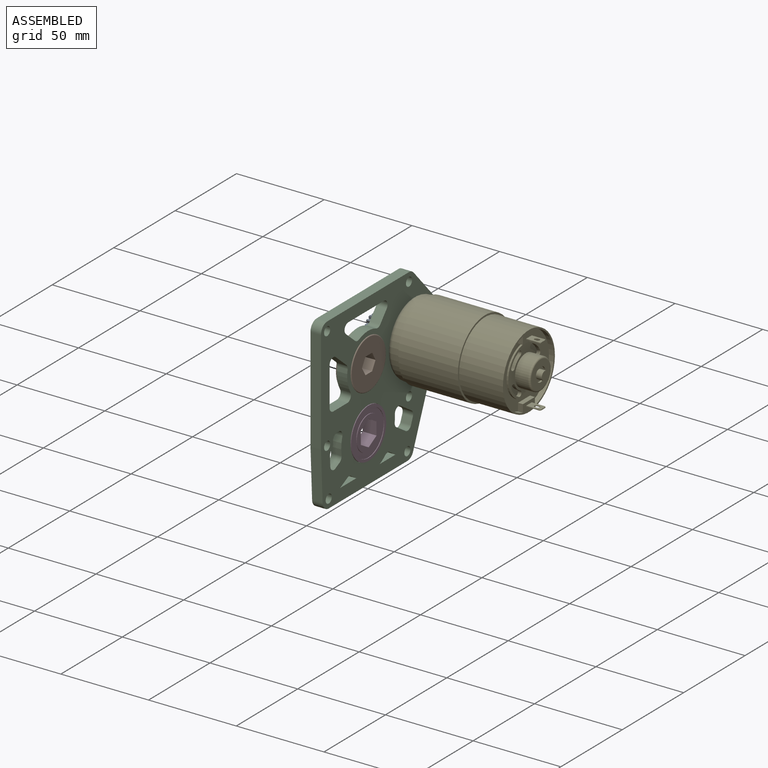
[diagram: assembled view]
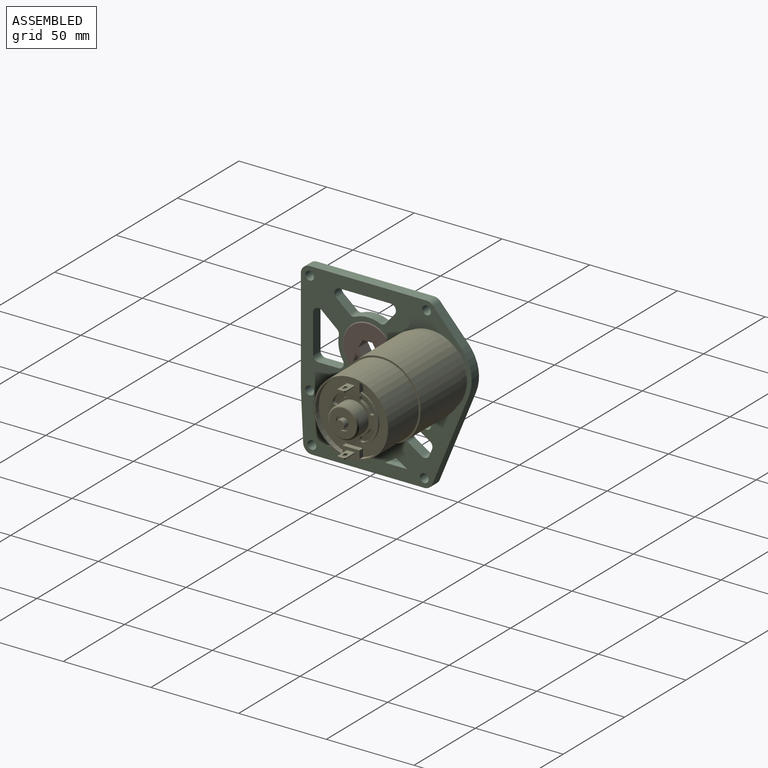
[diagram: assembled view, second angle]
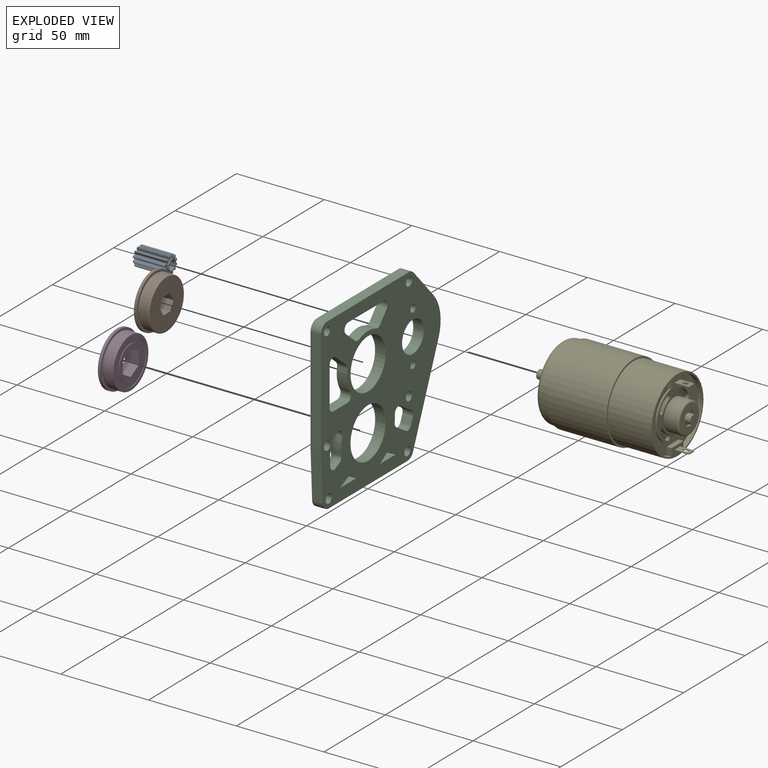
[diagram: exploded view]
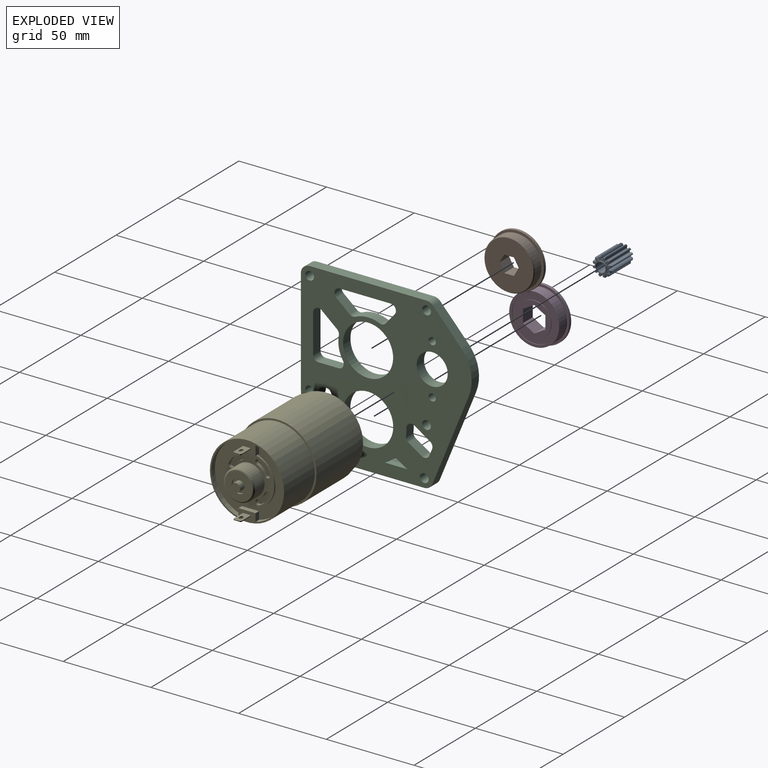
[diagram: exploded view, second angle]
ASSEMBLY  parts=5 mates=7
PART A: 55 faces, bbox 11x19.1x11 mm
  f0: cone r=2.48mm half-angle=45deg, axis (0,-1,0), area 5.9mm2, adj f2,f29
  f1: cone r=2.73mm half-angle=45deg, axis (0,1,0), area 5.9mm2, adj f2,f30
  f2: cylinder r=2.48mm len=18.54mm, axis (0,-1,0), area 288.9mm2, adj f0,f1
  f3: cylinder r=3.17mm len=6.35mm, axis (0,-1,0), area 15.8mm2, adj f28,f30
  f4: cylinder r=5.56mm len=17.24mm, axis (0,-1,0), area 8.5mm2, adj f17,f27,f31,f44
  f5: cylinder r=5.56mm len=17.24mm, axis (0,-1,0), area 8.5mm2, adj f26,f27,f32,f45
  f6: cylinder r=5.56mm len=17.24mm, axis (0,-1,0), area 8.5mm2, adj f23,f26,f33,f46
  f7: cylinder r=5.56mm len=17.24mm, axis (0,-1,0), area 8.5mm2, adj f24,f25,f34,f48
  f8: cylinder r=5.56mm len=17.24mm, axis (0,-1,0), area 8.5mm2, adj f21,f25,f35,f49
  f9: cylinder r=5.56mm len=17.24mm, axis (0,-1,0), area 8.5mm2, adj f23,f24,f36,f47
  f10: cylinder r=5.56mm len=17.24mm, axis (0,-1,0), area 8.5mm2, adj f21,f22,f37,f50
  f11: cylinder r=5.56mm len=17.24mm, axis (0,-1,0), area 8.5mm2, adj f20,f22,f38,f51
  f12: cylinder r=5.56mm len=17.24mm, axis (0,-1,0), area 8.5mm2, adj f18,f20,f39,f52
  f13: cylinder r=5.56mm len=17.24mm, axis (0,-1,0), area 8.5mm2, adj f18,f19,f40,f53
  f14: cylinder r=5.56mm len=17.24mm, axis (0,-1,0), area 8.5mm2, adj f16,f19,f41,f54
  f15: cylinder r=5.56mm len=17.24mm, axis (0,-1,0), area 8.5mm2, adj f16,f17,f42,f43
  f16: extruded ~18.26x2.4mm, area 79.8mm2, adj f14,f15,f28,f29,f41,f42,f43,f54
  f17: extruded ~18.26x2.13mm, area 79.8mm2, adj f4,f15,f28,f29,f31,f42,f43,f44
  f18: extruded ~18.26x2.13mm, area 79.8mm2, adj f12,f13,f28,f29,f39,f40,f52,f53
  f19: extruded ~18.26x2.13mm, area 79.8mm2, adj f13,f14,f28,f29,f40,f41,f53,f54
  f20: extruded ~18.26x2.4mm, area 79.8mm2, adj f11,f12,f28,f29,f38,f39,f51,f52
  f21: extruded ~18.26x2.13mm, area 79.8mm2, adj f8,f10,f28,f29,f35,f37,f49,f50
  f22: extruded ~18.26x2.13mm, area 79.8mm2, adj f10,f11,f28,f29,f37,f38,f50,f51
  f23: extruded ~18.26x2.13mm, area 79.8mm2, adj f6,f9,f28,f29,f33,f36,f46,f47
  f24: extruded ~18.26x2.13mm, area 79.8mm2, adj f7,f9,f28,f29,f34,f36,f47,f48
  f25: extruded ~18.26x2.4mm, area 79.8mm2, adj f7,f8,f28,f29,f34,f35,f48,f49
  f26: extruded ~18.26x2.4mm, area 79.8mm2, adj f5,f6,f28,f29,f32,f33,f45,f46
  f27: extruded ~18.26x2.13mm, area 79.8mm2, adj f4,f5,f28,f29,f31,f32,f44,f45
  f28: plane 9.98x9.98mm, normal (0,1,0), area 32.2mm2, adj f3,f16,f17,f18,f19,f20,f21,f22
  f29: plane 9.98x9.98mm, normal (0,-1,0), area 40.4mm2, adj f0,f16,f17,f18,f19,f20,f21,f22
  f30: plane 6.35x6.35mm, normal (0,1,0), area 8.2mm2, adj f1,f3
  f31: cone r=5.05mm half-angle=45deg, axis (0,1,0), area 0.6mm2, adj f4,f17,f27,f29
  f32: cone r=5.05mm half-angle=45deg, axis (0,1,0), area 0.6mm2, adj f5,f26,f27,f29
  f33: cone r=5.05mm half-angle=45deg, axis (0,1,0), area 0.6mm2, adj f6,f23,f26,f29
  f34: cone r=5.05mm half-angle=45deg, axis (0,1,0), area 0.6mm2, adj f7,f24,f25,f29
  f35: cone r=5.05mm half-angle=45deg, axis (0,1,0), area 0.6mm2, adj f8,f21,f25,f29
  f36: cone r=5.05mm half-angle=45deg, axis (0,1,0), area 0.6mm2, adj f9,f23,f24,f29
  f37: cone r=5.05mm half-angle=45deg, axis (0,1,0), area 0.6mm2, adj f10,f21,f22,f29
  f38: cone r=5.05mm half-angle=45deg, axis (0,1,0), area 0.6mm2, adj f11,f20,f22,f29
  f39: cone r=5.05mm half-angle=45deg, axis (0,1,0), area 0.6mm2, adj f12,f18,f20,f29
  f40: cone r=5.05mm half-angle=45deg, axis (0,1,0), area 0.6mm2, adj f13,f18,f19,f29
  f41: cone r=5.05mm half-angle=45deg, axis (0,1,0), area 0.6mm2, adj f14,f16,f19,f29
  f42: cone r=5.05mm half-angle=45deg, axis (0,1,0), area 0.6mm2, adj f15,f16,f17,f29
  f43: cone r=5.05mm half-angle=45deg, axis (0,-1,0), area 0.6mm2, adj f15,f16,f17,f28
  f44: cone r=5.05mm half-angle=45deg, axis (0,-1,0), area 0.6mm2, adj f4,f17,f27,f28
  f45: cone r=5.05mm half-angle=45deg, axis (0,-1,0), area 0.6mm2, adj f5,f26,f27,f28
  f46: cone r=5.05mm half-angle=45deg, axis (0,-1,0), area 0.6mm2, adj f6,f23,f26,f28
  f47: cone r=5.05mm half-angle=45deg, axis (0,-1,0), area 0.6mm2, adj f9,f23,f24,f28
  f48: cone r=5.05mm half-angle=45deg, axis (0,-1,0), area 0.6mm2, adj f7,f24,f25,f28
  f49: cone r=5.05mm half-angle=45deg, axis (0,-1,0), area 0.6mm2, adj f8,f21,f25,f28
  f50: cone r=5.05mm half-angle=45deg, axis (0,-1,0), area 0.6mm2, adj f10,f21,f22,f28
  f51: cone r=5.05mm half-angle=45deg, axis (0,-1,0), area 0.6mm2, adj f11,f20,f22,f28
  f52: cone r=5.05mm half-angle=45deg, axis (0,-1,0), area 0.6mm2, adj f12,f18,f20,f28
  f53: cone r=5.05mm half-angle=45deg, axis (0,-1,0), area 0.6mm2, adj f13,f18,f19,f28
  f54: cone r=5.05mm half-angle=45deg, axis (0,-1,0), area 0.6mm2, adj f14,f16,f19,f28
PART B: 17 faces, bbox 31.1x7.9x31.1 mm
  f0: torus R=13.78mm, axis (0,1,0), area 35.4mm2, adj f4,f13,f14
  f1: cone r=15.56mm half-angle=45deg, axis (0,1,0), area 17.5mm2, adj f2,f6
  f2: cylinder r=15.56mm len=31.12mm, axis (0,-1,0), area 124.1mm2, adj f1,f3
  f3: cone r=15.56mm half-angle=45deg, axis (0,-1,0), area 17.5mm2, adj f2,f15
  f4: cylinder r=14.29mm len=28.58mm, axis (0,-1,0), area 483.6mm2, adj f0,f14,f16
  f5: cylinder r=13.97mm len=27.94mm, axis (0,1,0), area 44.6mm2, adj f15,f16
  f6: plane 30.86x30.86mm, normal (0,-1,0), area 669.4mm2, adj f1,f7,f8,f9,f10,f11,f12
  f7: plane 7.93x4.76mm, normal (0.87,0,0.5), area 43.6mm2, adj f6,f8,f12,f13
  f8: plane 7.93x4.76mm, normal (0.87,0,-0.5), area 43.6mm2, adj f6,f7,f9,f13
  f9: plane 7.93x5.5mm, normal (0,0,-1), area 43.6mm2, adj f6,f8,f10,f13
  f10: plane 7.93x4.76mm, normal (-0.87,0,-0.5), area 43.6mm2, adj f6,f9,f11,f13
  f11: plane 7.93x4.76mm, normal (-0.87,0,0.5), area 43.6mm2, adj f6,f10,f12,f13
  f12: plane 7.93x5.5mm, normal (0,0,1), area 43.6mm2, adj f6,f7,f11,f13
  f13: plane 27.56x27.56mm, normal (0,1,0), area 517.9mm2, adj f0,f7,f8,f9,f10,f11,f12,f14
  f14: torus R=13.78mm, axis (0,1,0), area 35.4mm2, adj f0,f4,f13
  f15: plane 30.86x30.86mm, normal (0,1,0), area 134.9mm2, adj f3,f5
  f16: plane 28.58x28.58mm, normal (0,-1,0), area 28.2mm2, adj f4,f5
PART C: 66 faces, bbox 97.4x6x96.8 mm
  f0: cylinder r=22.5mm len=23.66mm, axis (0,1,0), area 152.1mm2, adj f1,f30,f44,f45
  f1: plane 17.76x16.16mm, normal (0.74,0,0.67), area 144.1mm2, adj f0,f2,f44,f45
  f2: cylinder r=5mm len=6mm, axis (0,1,0), area 25mm2, adj f1,f3,f44,f45
  f3: plane 66.67x6mm, normal (0,0,1), area 400mm2, adj f2,f4,f44,f45
  f4: cylinder r=5mm len=6mm, axis (0,1,0), area 47.1mm2, adj f3,f5,f44,f45
  f5: plane 59.07x6mm, normal (-1,0,0), area 354.4mm2, adj f4,f6,f44,f45
  f6: plane 28x6mm, normal (-1,0,-0.05), area 168.2mm2, adj f5,f7,f44,f45
  f7: cylinder r=5mm len=6mm, axis (0,1,0), area 45.7mm2, adj f6,f8,f44,f45
  f8: plane 64.06x6mm, normal (0,0,-1), area 384.3mm2, adj f7,f9,f44,f45
  f9: cylinder r=5mm len=6mm, axis (0,1,0), area 35.5mm2, adj f8,f30,f44,f45
  f10: plane 29.05x6mm, normal (0,0,-1), area 174.3mm2, adj f44,f45,f56,f57
  f11: plane 6.07x6mm, normal (-0.76,0,0.65), area 48mm2, adj f44,f45,f57,f62
  f12: cylinder r=17mm len=13.8mm, axis (0,1,0), area 85.3mm2, adj f44,f45,f62,f63
  f13: plane 7.52x6mm, normal (0.55,0,0.84), area 53.8mm2, adj f44,f45,f53,f59
  f14: cylinder r=21.85mm len=6mm, axis (0,1,0), area 24.6mm2, adj f44,f45,f53,f54
  f15: plane 8.88x6mm, normal (-0.55,0,-0.84), area 63.6mm2, adj f44,f45,f54,f58
  f16: plane 12.83x6mm, normal (0,0,1), area 77mm2, adj f17,f39,f44,f45
  f17: cylinder r=21.85mm len=6mm, axis (0,1,0), area 32.2mm2, adj f16,f44,f45,f52
  f18: plane 6x5.9mm, normal (0.45,0,-0.89), area 39.6mm2, adj f40,f44,f45,f51
  f19: cylinder r=21.85mm len=6mm, axis (0,1,0), area 29.5mm2, adj f40,f44,f45,f51
  f20: cylinder r=17mm len=12.4mm, axis (0,1,0), area 77.5mm2, adj f44,f45,f48,f64
  f21: plane 11.46x6mm, normal (0,0,1), area 68.7mm2, adj f44,f45,f48,f49
  f22: plane 21.98x6mm, normal (1,0,0), area 131.9mm2, adj f44,f45,f49,f55
  f23: plane 6x1.5mm, normal (0,0,-1), area 9mm2, adj f44,f45,f46,f47
  f24: cylinder r=21.85mm len=9.39mm, axis (0,1,0), area 56.9mm2, adj f44,f45,f47,f50
  f25: plane 6x3.22mm, normal (-0.45,0,0.89), area 21.6mm2, adj f44,f45,f50,f60
  f26: plane 6x5.49mm, normal (1,0,0.05), area 33mm2, adj f44,f45,f60,f61
  f27: cylinder r=2.05mm len=6mm, axis (0,1,0), area 77.3mm2, adj f44,f45
  f28: cylinder r=8.85mm len=17.7mm, axis (0,1,0), area 333.6mm2, adj f44,f45
  f29: cylinder r=2.5mm len=6mm, axis (0,1,0), area 94.2mm2, adj f44,f45
  f30: plane 50.68x20.72mm, normal (0.93,0,-0.38), area 328.5mm2, adj f0,f9,f44,f45
  f31: cylinder r=2.5mm len=6mm, axis (0,1,0), area 94.2mm2, adj f44,f45
  f32: cylinder r=2.5mm len=6mm, axis (0,1,0), area 94.2mm2, adj f44,f45
  f33: cylinder r=2.5mm len=6mm, axis (0,1,0), area 94.2mm2, adj f44,f45
  f34: plane 7.61x6.46mm, normal (0.65,0,0.76), area 59.9mm2, adj f44,f45,f56,f63
  f35: cylinder r=2.5mm len=6mm, axis (0,1,0), area 94.2mm2, adj f44,f45
  f36: cylinder r=2.5mm len=6mm, axis (0,1,0), area 94.2mm2, adj f44,f45
  f37: cylinder r=14.35mm len=28.7mm, axis (0,1,0), area 541mm2, adj f44,f45
  f38: plane 6x3.77mm, normal (-0.93,0,0.38), area 24.4mm2, adj f44,f45,f58,f59
  f39: plane 6x4.78mm, normal (-0.55,0,-0.84), area 34.2mm2, adj f16,f44,f45,f52
  f40: plane 13.27x6mm, normal (0,0,1), area 79.6mm2, adj f18,f19,f44,f45
  f41: plane 8.71x7.4mm, normal (-0.65,0,-0.76), area 68.6mm2, adj f44,f45,f55,f64
  f42: cylinder r=5mm len=6mm, axis (0,1,0), area 28.5mm2, adj f44,f45,f46,f61
  f43: cylinder r=2.05mm len=6mm, axis (0,1,0), area 77.3mm2, adj f44,f45
  f44: plane 97.38x96.84mm, normal (0,-1,0), area 5656.9mm2, adj f0,f1,f2,f3,f4,f5,f6,f7
  f45: plane 97.38x96.84mm, normal (0,1,0), area 5656.9mm2, adj f0,f1,f2,f3,f4,f5,f6,f7
  f46: cylinder r=3mm len=6mm, axis (0,1,0), area 30.1mm2, adj f23,f42,f44,f45
  f47: cylinder r=3mm len=6mm, axis (0,1,0), area 33.3mm2, adj f23,f24,f44,f45
  f48: cylinder r=3mm len=6mm, axis (0,1,0), area 38.5mm2, adj f20,f21,f44,f45
  f49: cylinder r=3mm len=6mm, axis (0,-1,0), area 28.3mm2, adj f21,f22,f44,f45
  f50: cylinder r=3mm len=6mm, axis (0,1,0), area 22.7mm2, adj f24,f25,f44,f45
  f51: cylinder r=3mm len=6mm, axis (0,1,0), area 20.5mm2, adj f18,f19,f44,f45
  f52: cylinder r=3mm len=6mm, axis (0,1,0), area 22.9mm2, adj f17,f39,f44,f45
  f53: cylinder r=3mm len=6mm, axis (0,1,0), area 20.3mm2, adj f13,f14,f44,f45
  f54: cylinder r=3mm len=6mm, axis (0,1,0), area 39.7mm2, adj f14,f15,f44,f45
  f55: cylinder r=3mm len=6mm, axis (0,1,0), area 40.9mm2, adj f22,f41,f44,f45
  f56: cylinder r=3mm len=6mm, axis (0,-1,0), area 43.9mm2, adj f10,f34,f44,f45
  f57: cylinder r=3mm len=6mm, axis (0,1,0), area 41mm2, adj f10,f11,f44,f45
  f58: cylinder r=3mm len=6mm, axis (0,1,0), area 24.9mm2, adj f15,f38,f44,f45
  f59: cylinder r=3mm len=6mm, axis (0,-1,0), area 31.7mm2, adj f13,f38,f44,f45
  f60: cylinder r=3mm len=6mm, axis (0,1,0), area 35.8mm2, adj f25,f26,f44,f45
  f61: cylinder r=3mm len=6mm, axis (0,1,0), area 16.1mm2, adj f26,f42,f44,f45
  f62: cylinder r=3mm len=6mm, axis (0,1,0), area 22.6mm2, adj f11,f12,f44,f45
  f63: cylinder r=3mm len=6mm, axis (0,1,0), area 20.6mm2, adj f12,f34,f44,f45
  f64: cylinder r=3mm len=6mm, axis (0,1,0), area 19.1mm2, adj f20,f41,f44,f45
  f65: cylinder r=14.29mm len=28.58mm, axis (0,-1,0), area 538.6mm2, adj f44,f45
PART D: 21 faces, bbox 31.1x31.1x7.9 mm
  f0: torus R=14.27mm, axis (0,0,1), area 46.4mm2, adj f4,f10
  f1: cylinder r=9.65mm len=19.3mm, axis (0,0,1), area 23.1mm2, adj f12,f13
  f2: cylinder r=12.7mm len=25.4mm, axis (0,0,1), area 30.4mm2, adj f11,f12
  f3: cylinder r=14.27mm len=28.55mm, axis (0,0,1), area 502.3mm2, adj f4,f11
  f4: cone r=14.06mm half-angle=30deg, axis (0,0,-1), area 38.5mm2, adj f0,f3
  f5: cylinder r=15.56mm len=31.12mm, axis (0,0,1), area 155.2mm2, adj f9,f10
  f6: cylinder r=12.7mm len=25.4mm, axis (0,0,1), area 30.4mm2, adj f8,f9
  f7: cylinder r=9.65mm len=19.3mm, axis (0,0,1), area 23.1mm2, adj f8,f14
  f8: plane 25.4x25.4mm, normal (0,0,1), area 214mm2, adj f6,f7
  f9: plane 31.12x31.12mm, normal (0,0,1), area 253.7mm2, adj f5,f6
  f10: plane 31.12x31.12mm, normal (0,0,-1), area 120.2mm2, adj f0,f5
  f11: plane 28.55x28.55mm, normal (0,0,-1), area 133.5mm2, adj f2,f3
  f12: plane 25.4x25.4mm, normal (0,0,-1), area 214mm2, adj f1,f2
  f13: plane 19.3x19.3mm, normal (0,0,-1), area 152.6mm2, adj f1,f15,f16,f17,f18,f19,f20
  f14: plane 19.3x19.3mm, normal (0,0,1), area 152.6mm2, adj f7,f15,f16,f17,f18,f19,f20
  f15: plane 7.94x6.36mm, normal (-0.87,-0.5,0), area 58.3mm2, adj f13,f14,f16,f20
  f16: plane 7.94x6.36mm, normal (-0.87,0.5,0), area 58.3mm2, adj f13,f14,f15,f17
  f17: plane 7.94x7.34mm, normal (0,1,0), area 58.3mm2, adj f13,f14,f16,f18
  f18: plane 7.94x6.36mm, normal (0.87,0.5,0), area 58.3mm2, adj f13,f14,f17,f19
  f19: plane 7.94x6.36mm, normal (0.87,-0.5,0), area 58.3mm2, adj f13,f14,f18,f20
  f20: plane 7.94x7.34mm, normal (0,-1,0), area 58.3mm2, adj f13,f14,f15,f19
PART E: 106 faces, bbox 88x45.8x45.8 mm
  f0: cylinder r=1.25mm len=2.5mm, axis (1,0,0), area 0.8mm2, adj f84,f105
  f1: cylinder r=8.75mm len=17.5mm, axis (-1,0,0), area 412.3mm2, adj f6,f104
  f2: cylinder r=1.5mm len=2.85mm, axis (1,0,0), area 9.4mm2, adj f91,f101,f103,f104
  f3: cylinder r=1.5mm len=2.85mm, axis (1,0,0), area 9.4mm2, adj f90,f98,f100,f104
  f4: cylinder r=1.5mm len=2.85mm, axis (1,0,0), area 9.4mm2, adj f89,f95,f96,f104
  f5: cylinder r=1.5mm len=2.85mm, axis (1,0,0), area 9.4mm2, adj f88,f92,f93,f104
  f6: torus R=7.75mm, axis (-1,0,0), area 82.8mm2, adj f1,f87
  f7: cylinder r=4mm len=8mm, axis (1,0,0), area 25.1mm2, adj f86,f87
  f8: cylinder r=2.5mm len=5mm, axis (-1,0,0), area 53.4mm2, adj f85,f86
  f9: cylinder r=14.25mm len=28.5mm, axis (1,0,0), area 89.5mm2, adj f84,f104
  f10: cylinder r=2.5mm len=7.55mm, axis (-1,0,0), area 118.6mm2, adj f11,f83
  f11: torus R=2.25mm, axis (1,0,0), area 5.9mm2, adj f10,f82
  f12: cylinder r=3.75mm len=7.5mm, axis (-1,0,0), area 23.6mm2, adj f81,f83
  f13: cylinder r=6.62mm len=13.25mm, axis (-1,0,0), area 41.6mm2, adj f28,f81
  f14: torus R=8.15mm, axis (1,0,0), area 63.9mm2, adj f22,f28
  f15: cone r=1.65mm half-angle=59deg, axis (-1,0,0), area 10mm2, adj f16
  f16: cylinder r=1.65mm len=11.5mm, axis (-1,0,0), area 119.2mm2, adj f15,f25
  f17: cone r=1.65mm half-angle=59deg, axis (-1,0,0), area 10mm2, adj f18
  f18: cylinder r=1.65mm len=11.5mm, axis (-1,0,0), area 119.2mm2, adj f17,f25
  f19: cylinder r=21.15mm len=42.3mm, axis (-1,0,0), area 3322.2mm2, adj f26,f30
  f20: cylinder r=22.15mm len=44.3mm, axis (1,0,0), area 4731.9mm2, adj f29,f30
  f21: torus R=18.65mm, axis (1,0,0), area 499.4mm2, adj f23,f25
  f22: cylinder r=8.9mm len=17.8mm, axis (-1,0,0), area 237.7mm2, adj f14,f25
  f23: cylinder r=21.15mm len=42.3mm, axis (-1,0,0), area 611.3mm2, adj f21,f29
  f24: cylinder r=20.3mm len=39.41mm, axis (1,0,0), area 151mm2, adj f26,f31,f37,f84
  f25: plane 37.3x37.3mm, normal (-1,0,0), area 647.6mm2, adj f16,f18,f21,f22,f61,f62,f63,f64
  f26: plane 42.3x42.3mm, normal (1,0,0), area 203.5mm2, adj f19,f24,f27,f31,f32,f33,f34,f35
  f27: cylinder r=20.3mm len=39.41mm, axis (1,0,0), area 151mm2, adj f26,f32,f36,f84
  f28: plane 16.3x16.3mm, normal (-1,0,0), area 70.8mm2, adj f13,f14
  f29: plane 44.3x44.3mm, normal (-1,0,0), area 136mm2, adj f20,f23
  f30: plane 44.3x44.3mm, normal (1,0,0), area 136mm2, adj f19,f20
  f31: plane 5.46x2.8mm, normal (0,1,0), area 15.3mm2, adj f24,f26,f33,f84
  f32: plane 4.46x2.8mm, normal (0,-1,0), area 12.5mm2, adj f26,f27,f35,f84
  f33: plane 2.81x2.8mm, normal (0,0,-1), area 7.9mm2, adj f26,f31,f34,f84
  f34: plane 2.8x1mm, normal (0,-1,0), area 2.8mm2, adj f26,f33,f35,f84
  f35: plane 6.94x2.8mm, normal (0,0,-1), area 19.4mm2, adj f26,f32,f34,f84
  f36: plane 4.46x2.8mm, normal (0,-1,0), area 12.5mm2, adj f26,f27,f38,f84
  f37: plane 4.46x2.8mm, normal (0,1,0), area 12.5mm2, adj f24,f26,f38,f84
  f38: plane 9.75x2.8mm, normal (0,0,1), area 27.3mm2, adj f26,f36,f37,f84
  f39: plane 7.65x0.5mm, normal (0,-1,0), area 3.8mm2, adj f26,f40,f42,f49
  f40: plane 8.15x4.6mm, normal (0,0,-1), area 32.1mm2, adj f26,f39,f41,f43,f49,f50,f53,f54
  f41: plane 7.65x0.5mm, normal (0,1,0), area 3.8mm2, adj f26,f40,f42,f50
  f42: plane 8.15x4.6mm, normal (0,0,1), area 32.1mm2, adj f26,f39,f41,f43,f49,f50,f53,f54
  f43: plane 3.6x0.5mm, normal (1,0,0), area 1.8mm2, adj f40,f42,f49,f50
  f44: plane 8.15x4.6mm, normal (0,0,-1), area 32.1mm2, adj f26,f45,f47,f48,f51,f52,f57,f58
  f45: plane 7.65x0.5mm, normal (0,1,0), area 3.8mm2, adj f26,f44,f46,f52
  f46: plane 8.15x4.6mm, normal (0,0,1), area 32.1mm2, adj f26,f45,f47,f48,f51,f52,f57,f58
  f47: plane 7.65x0.5mm, normal (0,-1,0), area 3.8mm2, adj f26,f44,f46,f51
  f48: plane 3.6x0.5mm, normal (1,0,0), area 1.8mm2, adj f44,f46,f51,f52
  f49: plane 0.5x0.5mm, normal (0.71,-0.71,0), area 0.4mm2, adj f39,f40,f42,f43
  f50: plane 0.5x0.5mm, normal (0.71,0.71,0), area 0.4mm2, adj f40,f41,f42,f43
  f51: plane 0.5x0.5mm, normal (0.71,-0.71,0), area 0.4mm2, adj f44,f46,f47,f48
  f52: plane 0.5x0.5mm, normal (0.71,0.71,0), area 0.4mm2, adj f44,f45,f46,f48
  f53: cylinder r=1mm len=2mm, axis (0,0,1), area 1.6mm2, adj f40,f42,f54,f56
  f54: plane 1x0.5mm, normal (0,1,0), area 0.5mm2, adj f40,f42,f53,f55
  f55: cylinder r=1mm len=2mm, axis (0,0,1), area 1.6mm2, adj f40,f42,f54,f56
  f56: plane 1x0.5mm, normal (0,-1,0), area 0.5mm2, adj f40,f42,f53,f55
  f57: plane 1x0.5mm, normal (0,1,0), area 0.5mm2, adj f44,f46,f58,f60
  f58: cylinder r=1mm len=2mm, axis (0,0,-1), area 1.6mm2, adj f44,f46,f57,f59
  f59: plane 1x0.5mm, normal (0,-1,0), area 0.5mm2, adj f44,f46,f58,f60
  f60: cylinder r=1mm len=2mm, axis (0,0,-1), area 1.6mm2, adj f44,f46,f57,f59
  f61: plane 10x4.26mm, normal (0,0.91,-0.42), area 47mm2, adj f25,f62,f64,f65
  f62: cylinder r=11.3mm len=10mm, axis (-1,0,0), area 78.9mm2, adj f25,f61,f63,f65
  f63: plane 10x4.26mm, normal (0,-0.42,0.91), area 47mm2, adj f25,f62,f64,f65
  f64: cylinder r=16mm len=10mm, axis (-1,0,0), area 111.7mm2, adj f25,f61,f63,f65
  f65: plane 9.73x9.73mm, normal (-1,0,0), area 44.8mm2, adj f61,f62,f63,f64
  f66: plane 10x4.26mm, normal (0,-0.42,-0.91), area 47mm2, adj f25,f67,f69,f70
  f67: cylinder r=11.3mm len=10mm, axis (-1,0,0), area 78.9mm2, adj f25,f66,f68,f70
  f68: plane 10x4.26mm, normal (0,0.91,0.42), area 47mm2, adj f25,f67,f69,f70
  f69: cylinder r=16mm len=10mm, axis (-1,0,0), area 111.7mm2, adj f25,f66,f68,f70
  f70: plane 9.73x9.73mm, normal (-1,0,0), area 44.8mm2, adj f66,f67,f68,f69
  f71: plane 10x4.26mm, normal (0,-0.91,0.42), area 47mm2, adj f25,f72,f74,f75
  f72: cylinder r=11.3mm len=10mm, axis (-1,0,0), area 78.9mm2, adj f25,f71,f73,f75
  f73: plane 10x4.26mm, normal (0,0.42,-0.91), area 47mm2, adj f25,f72,f74,f75
  f74: cylinder r=16mm len=10mm, axis (-1,0,0), area 111.7mm2, adj f25,f71,f73,f75
  f75: plane 9.73x9.73mm, normal (-1,0,0), area 44.8mm2, adj f71,f72,f73,f74
  f76: plane 10x4.26mm, normal (0,0.42,0.91), area 47mm2, adj f25,f77,f79,f80
  f77: cylinder r=11.3mm len=10mm, axis (-1,0,0), area 78.9mm2, adj f25,f76,f78,f80
  f78: plane 10x4.26mm, normal (0,-0.91,-0.42), area 47mm2, adj f25,f77,f79,f80
  f79: cylinder r=16mm len=10mm, axis (-1,0,0), area 111.7mm2, adj f25,f76,f78,f80
  f80: plane 9.73x9.73mm, normal (-1,0,0), area 44.8mm2, adj f76,f77,f78,f79
  f81: plane 13.25x13.25mm, normal (-1,0,0), area 93.7mm2, adj f12,f13
  f82: plane 4.5x4.5mm, normal (-1,0,0), area 15.9mm2, adj f11
  f83: plane 7.5x7.5mm, normal (-1,0,0), area 24.5mm2, adj f10,f12
  f84: plane 40.6x39.41mm, normal (1,0,0), area 554.3mm2, adj f0,f9,f24,f27,f31,f32,f33,f34
  f85: plane 5x5mm, normal (1,0,0), area 19.6mm2, adj f8
  f86: plane 8x8mm, normal (1,0,0), area 30.6mm2, adj f7,f8
  f87: plane 15.5x15.5mm, normal (1,0,0), area 138.4mm2, adj f6,f7
  f88: plane 8.36x8.36mm, normal (1,0,0), area 30.2mm2, adj f5,f92,f93,f94
  f89: plane 8.36x8.36mm, normal (1,0,0), area 30.2mm2, adj f4,f95,f96,f97
  f90: plane 8.36x8.36mm, normal (1,0,0), area 30.2mm2, adj f3,f98,f99,f100
  f91: plane 8.36x8.36mm, normal (1,0,0), area 30.2mm2, adj f2,f101,f102,f103
  f92: cylinder r=13mm len=6.05mm, axis (1,0,0), area 17.5mm2, adj f5,f88,f94,f104
  f93: cylinder r=10mm len=4.66mm, axis (1,0,0), area 13.4mm2, adj f5,f88,f94,f104
  f94: cylinder r=1.5mm len=2.85mm, axis (1,0,0), area 9.4mm2, adj f88,f92,f93,f104
  f95: cylinder r=13mm len=6.05mm, axis (1,0,0), area 17.5mm2, adj f4,f89,f97,f104
  f96: cylinder r=10mm len=4.66mm, axis (1,0,0), area 13.4mm2, adj f4,f89,f97,f104
  f97: cylinder r=1.5mm len=2.85mm, axis (1,0,0), area 9.4mm2, adj f89,f95,f96,f104
  f98: cylinder r=13mm len=6.05mm, axis (1,0,0), area 17.5mm2, adj f3,f90,f99,f104
  f99: cylinder r=1.5mm len=2.85mm, axis (1,0,0), area 9.4mm2, adj f90,f98,f100,f104
  f100: cylinder r=10mm len=4.66mm, axis (1,0,0), area 13.4mm2, adj f3,f90,f99,f104
  f101: cylinder r=13mm len=6.05mm, axis (1,0,0), area 17.5mm2, adj f2,f91,f102,f104
  f102: cylinder r=1.5mm len=2.85mm, axis (1,0,0), area 9.4mm2, adj f91,f101,f103,f104
  f103: cylinder r=10mm len=4.66mm, axis (1,0,0), area 13.4mm2, adj f2,f91,f102,f104
  f104: plane 28.5x28.5mm, normal (1,0,0), area 276.5mm2, adj f1,f2,f3,f4,f5,f9,f92,f93
  f105: plane 2.5x2.5mm, normal (1,0,0), area 4.9mm2, adj f0
PLACE A rot(axis=(0,0,-1),90deg) t=(35.73,-64.23,26.37)mm
PLACE B rot(axis=(0.71,0.71,0),180deg) t=(51.05,-100.78,26.37)mm
PLACE C rot(axis=(0,0,1),90deg) t=(44.65,-100.78,26.37)mm
PLACE D rot(axis=(-0.71,0,0.71),180deg) t=(51,-100.78,-9.26)mm
PLACE E t=(50.65,-64.23,26.37)mm
MATE planar E.f1 <-> C.f44  axis (-1,0,0) through (50.65,-64.23,26.37)mm
MATE slider A.f0 <-> E.f1  axis (-1,0,0) through (36.12,-64.23,26.37)mm
MATE slider E.f1 <-> C.f28  axis (-1,0,0) through (50.65,-64.23,26.37)mm
MATE fastened E.f1 <-> A.f0  axis (-1,0,0) through (45.65,-64.23,26.37)mm
MATE planar D.f0 <-> C.f37  axis (1,0,0) through (44.65,-100.78,-9.26)mm
MATE planar B.f1 <-> C.f45  axis (1,0,0) through (44.65,-100.78,26.37)mm
MATE slider C.f37 <-> D.f0  axis (-1,0,0) through (44.65,-100.78,-9.26)mm
